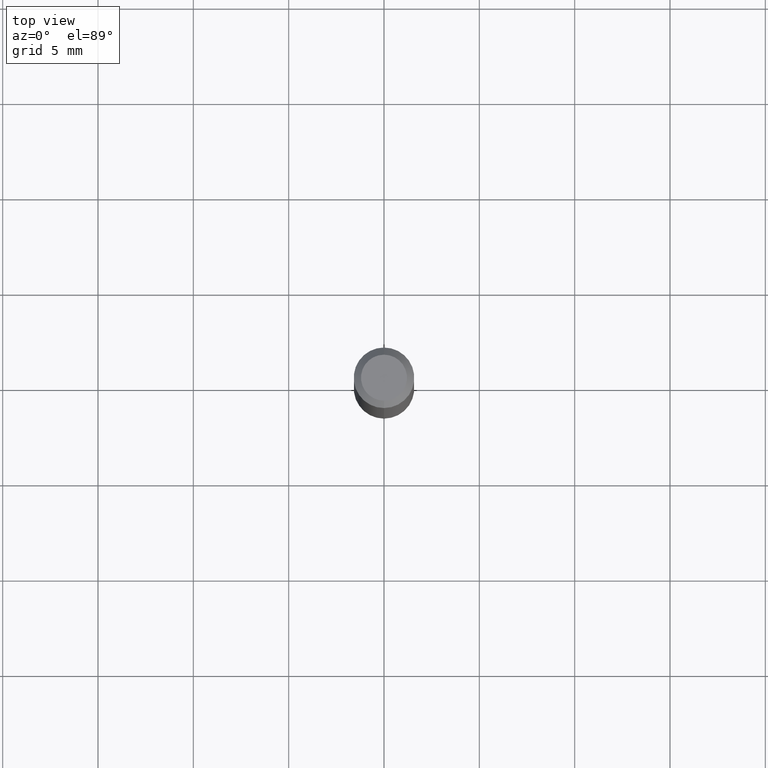
[diagram: clean part render]
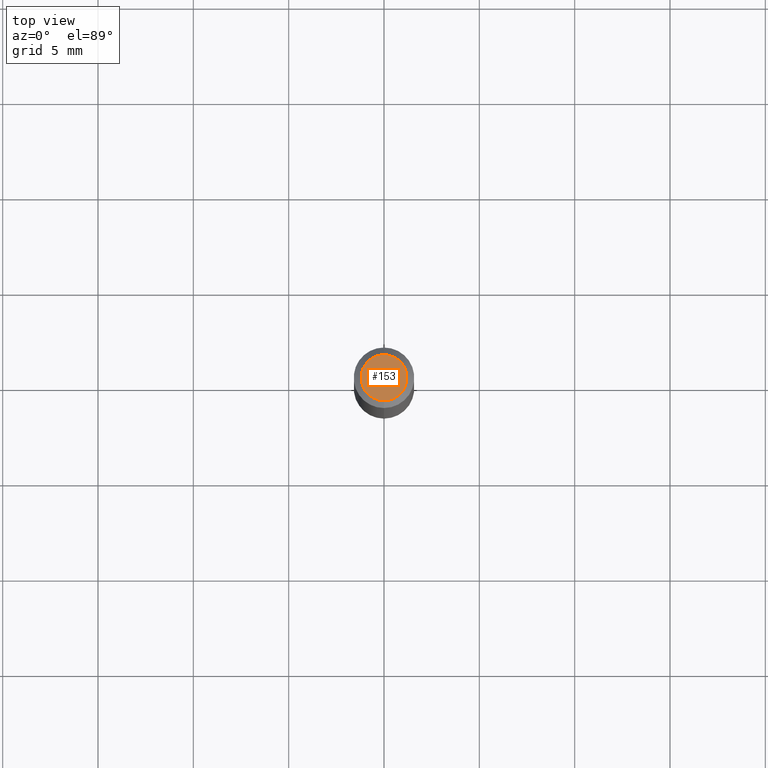
[diagram: same view with one face highlighted and labeled with its STEP entity id]
A machine part, top view. The second image highlights one B-rep face of the part: STEP entity #153.
In plain terms, the highlighted planar face has unit normal (0, -0, -1).
Its self-contained STEP definition (entity closure, byte-faithful):
#51 = CARTESIAN_POINT ( 'NONE',  ( 3.316907271900976096E-16, 0.04749999999999999362, -3.024361068583656852E-16 ) ) ;
#65 = VERTEX_POINT ( 'NONE', #450 ) ;
#91 = AXIS2_PLACEMENT_3D ( 'NONE', #461, #217, #255 ) ;
#101 = EDGE_LOOP ( 'NONE', ( #137, #377 ) ) ;
#126 = DIRECTION ( 'NONE',  ( 6.982962677686265922E-15, 1.000000000000000000, -3.491411594847488118E-15 ) ) ;
#137 = ORIENTED_EDGE ( 'NONE', *, *, #300, .T. ) ;
#153 = ADVANCED_FACE ( 'NONE', ( #202 ), #163, .F. ) ;
#163 = PLANE ( 'NONE',  #399 ) ;
#202 = FACE_OUTER_BOUND ( 'NONE', #101, .T. ) ;
#211 = DIRECTION ( 'NONE',  ( -2.445517508157003732E-29, 3.491411594847488118E-15, 1.000000000000000000 ) ) ;
#217 = DIRECTION ( 'NONE',  ( -2.445517508157003732E-29, 3.491411594847488118E-15, 1.000000000000000000 ) ) ;
#243 = CIRCLE ( 'NONE', #91, 0.04749999999999999362 ) ;
#252 = AXIS2_PLACEMENT_3D ( 'NONE', #382, #211, #459 ) ;
#255 = DIRECTION ( 'NONE',  ( -6.982962677686266711E-15, -1.000000000000000000, 3.491411594847488512E-15 ) ) ;
#263 = CARTESIAN_POINT ( 'NONE',  ( -3.773273898774340269E-16, -0.04749999999999999362, -1.073460614509644018E-16 ) ) ;
#299 = EDGE_CURVE ( 'NONE', #356, #65, #243, .T. ) ;
#300 = EDGE_CURVE ( 'NONE', #65, #356, #310, .T. ) ;
#310 = CIRCLE ( 'NONE', #252, 0.04749999999999999362 ) ;
#325 = DIRECTION ( 'NONE',  ( 2.445517508157003172E-29, -3.491411594847488118E-15, -1.000000000000000000 ) ) ;
#356 = VERTEX_POINT ( 'NONE', #263 ) ;
#377 = ORIENTED_EDGE ( 'NONE', *, *, #299, .T. ) ;
#382 = CARTESIAN_POINT ( 'NONE',  ( 6.680863114206711395E-45, -9.538121425312932952E-31, -2.731881122062200662E-16 ) ) ;
#399 = AXIS2_PLACEMENT_3D ( 'NONE', #51, #325, #126 ) ;
#450 = CARTESIAN_POINT ( 'NONE',  ( 3.840629472727447874E-16, 0.04749999999999999362, -4.390301629614757676E-16 ) ) ;
#459 = DIRECTION ( 'NONE',  ( -6.982962677686266711E-15, -1.000000000000000000, 3.491411594847488512E-15 ) ) ;
#461 = CARTESIAN_POINT ( 'NONE',  ( 6.680863114206711395E-45, -9.538121425312932952E-31, -2.731881122062200662E-16 ) ) ;